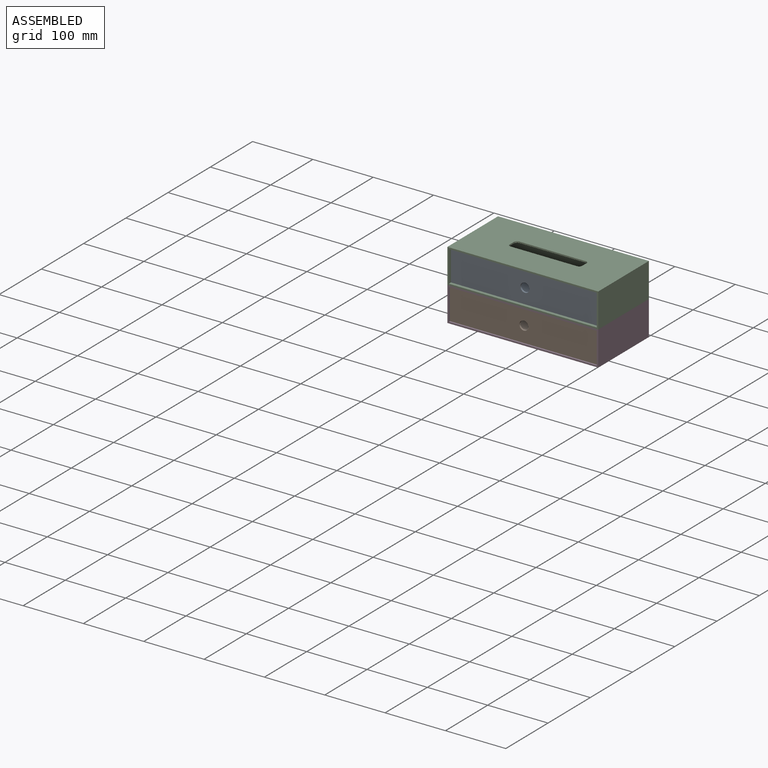
[diagram: assembled view]
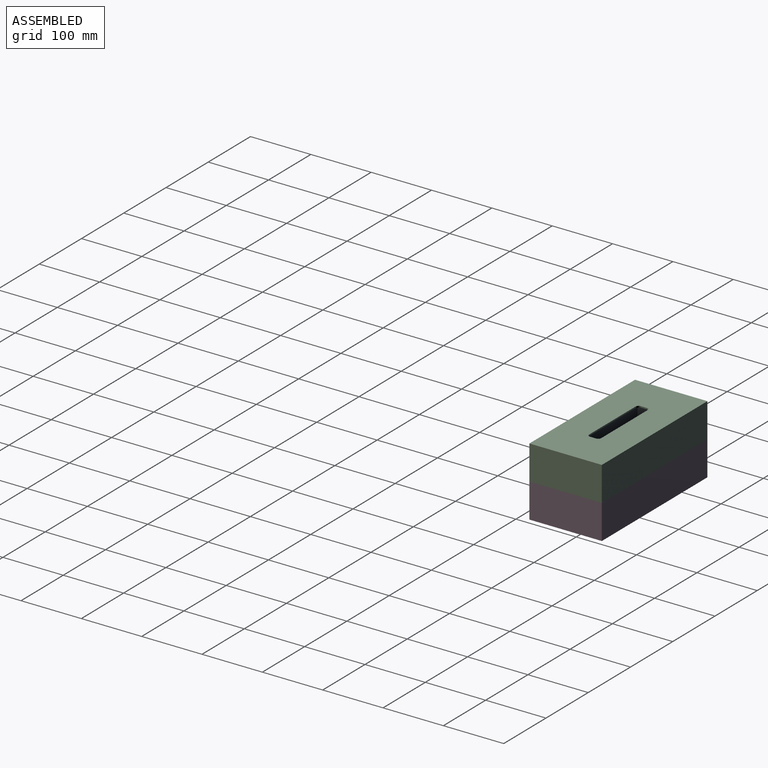
[diagram: assembled view, second angle]
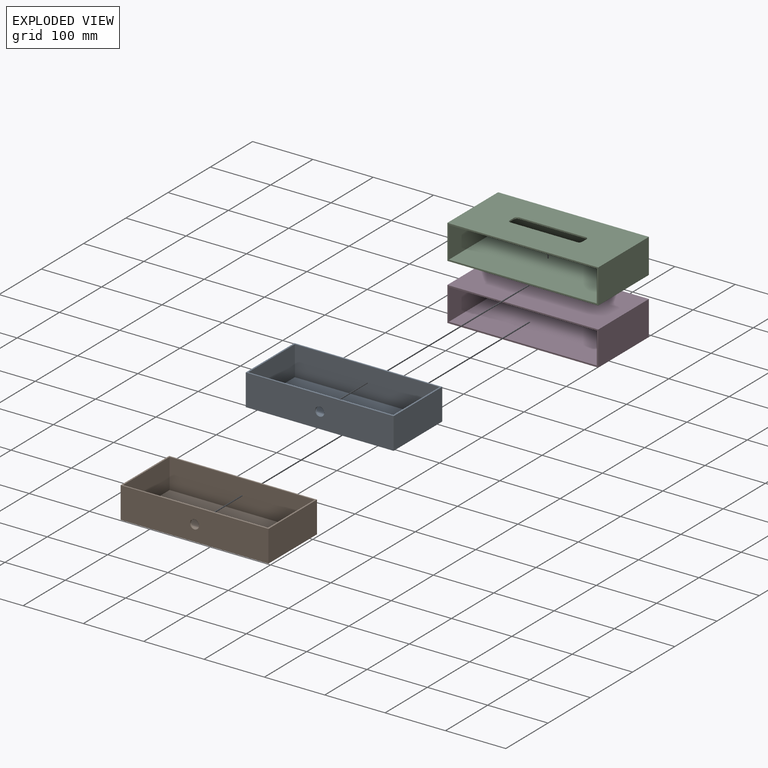
[diagram: exploded view]
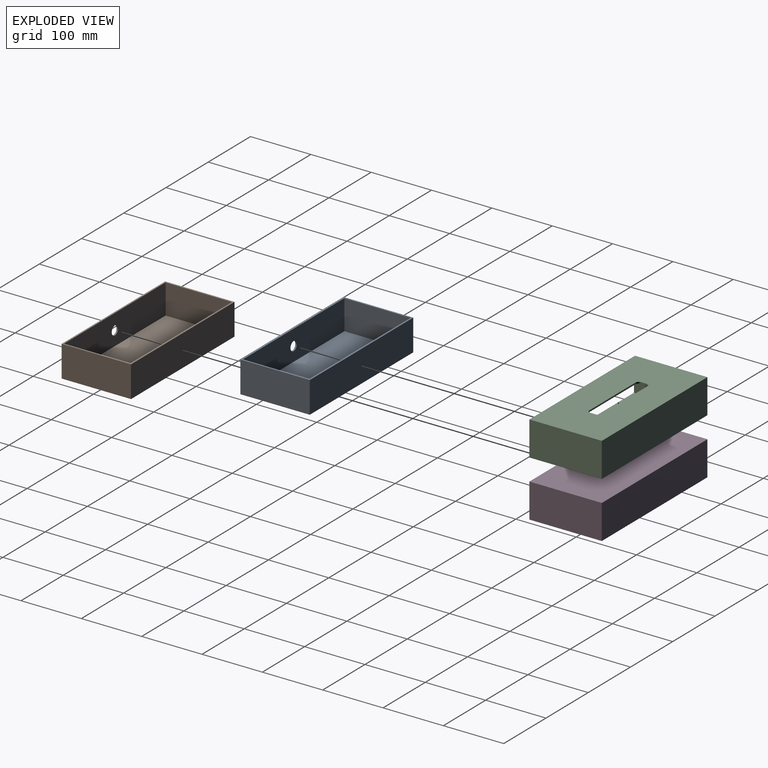
[diagram: exploded view, second angle]
ASSEMBLY  parts=4 mates=3
PART A: 12 faces, bbox 245x115x52 mm
  f0: plane 245x115mm, normal (0,0,1), area 1775mm2, adj f1,f2,f3,f4,f6,f7,f8,f9
  f1: plane 115x52mm, normal (1,0,0), area 5980mm2, adj f0,f2,f4,f5
  f2: plane 245x52mm, normal (0,1,0), area 12740mm2, adj f0,f1,f3,f5
  f3: plane 115x52mm, normal (-1,0,0), area 5980mm2, adj f0,f2,f4,f5
  f4: plane 245x52mm, normal (0,-1,0), area 12563.3mm2, adj f0,f1,f3,f5,f11
  f5: plane 245x115mm, normal (0,0,-1), area 28175mm2, adj f1,f2,f3,f4
  f6: plane 110x49.5mm, normal (-1,0,0), area 5445mm2, adj f0,f7,f9,f10
  f7: plane 240x49.5mm, normal (0,-1,0), area 11880mm2, adj f0,f6,f8,f10
  f8: plane 110x49.5mm, normal (1,0,0), area 5445mm2, adj f0,f7,f9,f10
  f9: plane 240x49.5mm, normal (0,1,0), area 11703.3mm2, adj f0,f6,f8,f10,f11
  f10: plane 240x110mm, normal (0,0,1), area 26400mm2, adj f6,f7,f8,f9
  f11: cylinder r=7.5mm len=15mm, axis (0,-1,0), area 117.8mm2, adj f4,f9
PART B: same geometry as A
PART C: 19 faces, bbox 250x120x57 mm
  f0: plane 250x57mm, normal (0,-1,0), area 1510mm2, adj f1,f3,f4,f5,f6,f8,f9,f10
  f1: plane 120x57mm, normal (1,0,0), area 6840mm2, adj f0,f2,f4,f5
  f2: plane 250x57mm, normal (0,1,0), area 14250mm2, adj f1,f3,f4,f5
  f3: plane 120x57mm, normal (-1,0,0), area 6840mm2, adj f0,f2,f4,f5
  f4: plane 250x120mm, normal (0,0,1), area 27621.5mm2, adj f0,f1,f2,f3,f11,f12,f13,f14
  f5: plane 250x120mm, normal (0,0,-1), area 30000mm2, adj f0,f1,f2,f3
  f6: plane 117.5x52mm, normal (-1,0,0), area 6110mm2, adj f0,f7,f9,f10
  f7: plane 245x52mm, normal (0,-1,0), area 12740mm2, adj f6,f8,f9,f10
  f8: plane 117.5x52mm, normal (1,0,0), area 6110mm2, adj f0,f7,f9,f10
  f9: plane 245x117.5mm, normal (0,0,-1), area 26409mm2, adj f0,f6,f7,f8,f11,f12,f13,f14
  f10: plane 245x117.5mm, normal (0,0,1), area 28787.5mm2, adj f0,f6,f7,f8
  f11: plane 110x2.5mm, normal (0,-1,0), area 275mm2, adj f4,f9,f12,f18
  f12: cylinder r=5mm len=5mm, axis (0,0,1), area 19.6mm2, adj f4,f9,f11,f13
  f13: plane 10x2.5mm, normal (1,0,0), area 25mm2, adj f4,f9,f12,f14
  f14: cylinder r=5mm len=5mm, axis (0,0,1), area 19.6mm2, adj f4,f9,f13,f15
  f15: plane 110x2.5mm, normal (0,1,0), area 275mm2, adj f4,f9,f14,f16
  f16: cylinder r=5mm len=5mm, axis (0,0,1), area 19.6mm2, adj f4,f9,f15,f17
  f17: plane 10x2.5mm, normal (-1,0,0), area 25mm2, adj f4,f9,f16,f18
  f18: cylinder r=5mm len=5mm, axis (0,0,1), area 19.6mm2, adj f4,f9,f11,f17
PART D: 11 faces, bbox 250x120x57 mm
  f0: plane 250x57mm, normal (0,-1,0), area 1510mm2, adj f1,f3,f4,f5,f6,f8,f9,f10
  f1: plane 120x57mm, normal (1,0,0), area 6840mm2, adj f0,f2,f4,f5
  f2: plane 250x57mm, normal (0,1,0), area 14250mm2, adj f1,f3,f4,f5
  f3: plane 120x57mm, normal (-1,0,0), area 6840mm2, adj f0,f2,f4,f5
  f4: plane 250x120mm, normal (0,0,1), area 30000mm2, adj f0,f1,f2,f3
  f5: plane 250x120mm, normal (0,0,-1), area 30000mm2, adj f0,f1,f2,f3
  f6: plane 117.5x52mm, normal (-1,0,0), area 6110mm2, adj f0,f7,f9,f10
  f7: plane 245x52mm, normal (0,-1,0), area 12740mm2, adj f6,f8,f9,f10
  f8: plane 117.5x52mm, normal (1,0,0), area 6110mm2, adj f0,f7,f9,f10
  f9: plane 245x117.5mm, normal (0,0,-1), area 28787.5mm2, adj f0,f6,f7,f8
  f10: plane 245x117.5mm, normal (0,0,1), area 28787.5mm2, adj f0,f6,f7,f8
PLACE A t=(0,2.5,58.25)mm
PLACE B t=(0,0,2.5)mm
PLACE C t=(0,0,9)mm
PLACE D at identity fixed
MATE slider B.f11 <-> D.f7  axis (0,1,0) through (0,57.5,28.5)mm
MATE slider A.f7 <-> C.f7  axis (0,-1,0) through (0,57.5,85.5)mm
MATE fastened D.f4 <-> C.f5  axis (0,0,1) through (0,0,57)mm
